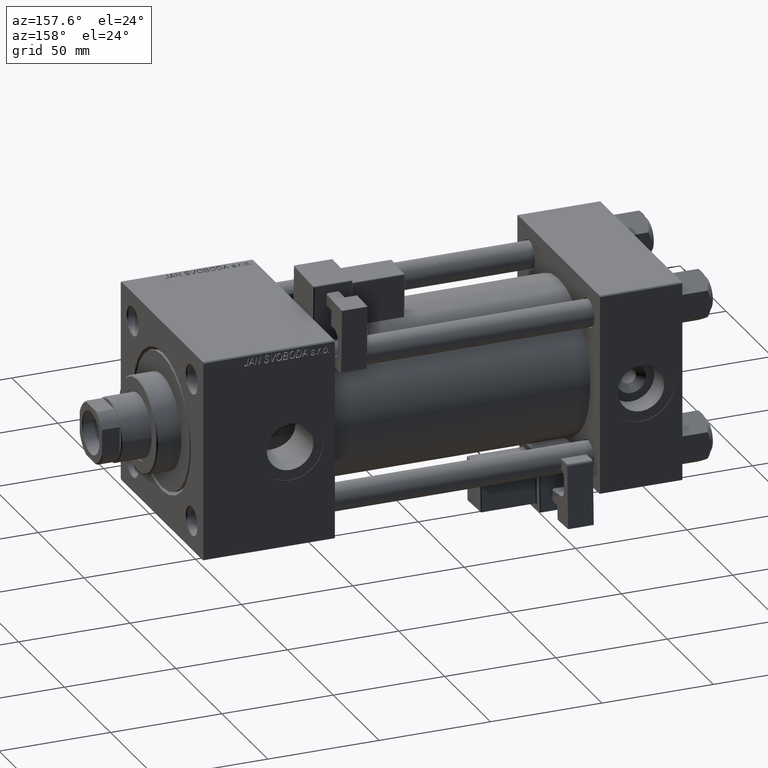
[diagram: clean part render]
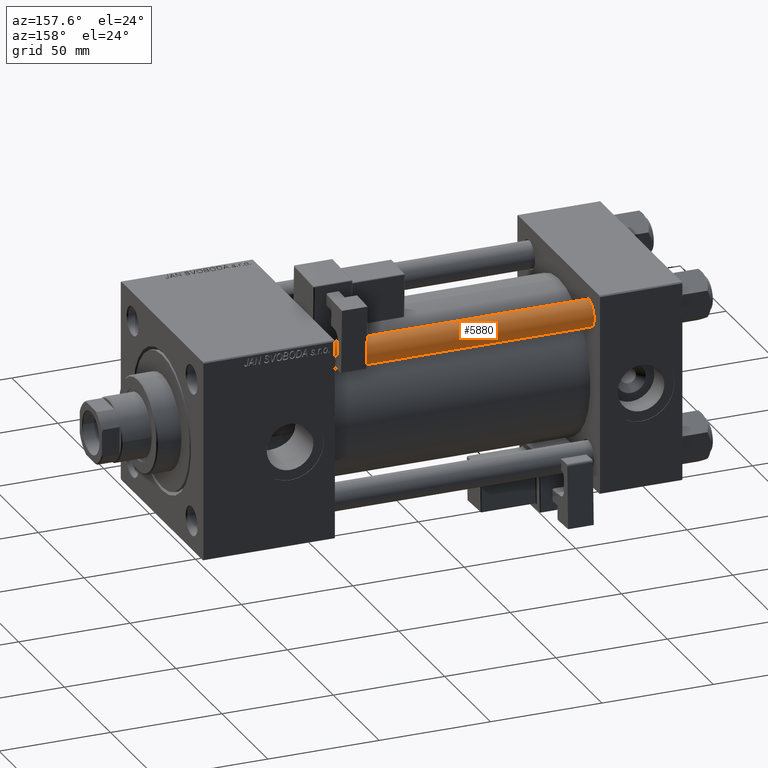
[diagram: same view with one face highlighted and labeled with its STEP entity id]
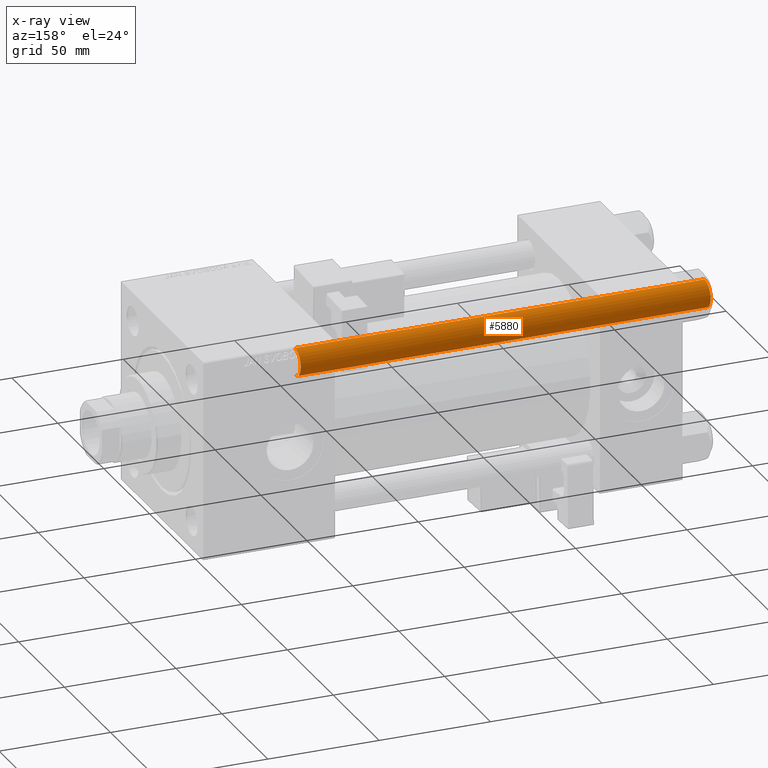
[diagram: x-ray of the same camera — body ghosted, the highlighted face saturated]
A machine part, auxiliary view. The second image highlights one B-rep face of the part: STEP entity #5880.
The next image is the same camera in x-ray: the body ghosted, the highlighted face saturated — about 0% of this face is hidden behind the body in this view.
In plain terms, the highlighted cylindrical surface (edge-blend (fillet) strip) has radius 6 mm, axis along (-1, 0, 0).
Its self-contained STEP definition (entity closure, byte-faithful):
#1052 = ORIENTED_EDGE ( 'NONE', *, *, #9875, .F. ) ;
#1553 = AXIS2_PLACEMENT_3D ( 'NONE', #29249, #5115, #13340 ) ;
#2311 = CARTESIAN_POINT ( 'NONE',  ( 6.000000000000000888, 7.347880794884120722E-16, 184.5000000000000000 ) ) ;
#5115 = DIRECTION ( 'NONE',  ( -0.000000000000000000, -0.000000000000000000, 1.000000000000000000 ) ) ;
#5134 = DIRECTION ( 'NONE',  ( 1.000000000000000000, 0.000000000000000000, 0.000000000000000000 ) ) ;
#5228 = CARTESIAN_POINT ( 'NONE',  ( 6.000000000000000888, 7.347880794884120722E-16, 0.5000000000000281997 ) ) ;
#5581 = FACE_OUTER_BOUND ( 'NONE', #11439, .T. ) ;
#5728 = ORIENTED_EDGE ( 'NONE', *, *, #31343, .T. ) ;
#5880 = ADVANCED_FACE ( 'NONE', ( #5581 ), #37909, .T. ) ;
#5950 = CARTESIAN_POINT ( 'NONE',  ( -6.000000000000000888, 0.000000000000000000, 0.5000000000000281997 ) ) ;
#6296 = DIRECTION ( 'NONE',  ( -0.000000000000000000, -0.000000000000000000, -1.000000000000000000 ) ) ;
#9082 = CIRCLE ( 'NONE', #48896, 6.000000000000000888 ) ;
#9875 = EDGE_CURVE ( 'NONE', #40016, #18573, #34541, .T. ) ;
#9911 = DIRECTION ( 'NONE',  ( -0.000000000000000000, -0.000000000000000000, -1.000000000000000000 ) ) ;
#11439 = EDGE_LOOP ( 'NONE', ( #13278, #5728, #27352, #1052 ) ) ;
#12264 = VECTOR ( 'NONE', #9911, 1000.000000000000000 ) ;
#13278 = ORIENTED_EDGE ( 'NONE', *, *, #15182, .T. ) ;
#13340 = DIRECTION ( 'NONE',  ( 1.000000000000000000, 0.000000000000000000, 0.000000000000000000 ) ) ;
#14268 = LINE ( 'NONE', #25927, #41997 ) ;
#15182 = EDGE_CURVE ( 'NONE', #40016, #48878, #9082, .T. ) ;
#18056 = CARTESIAN_POINT ( 'NONE',  ( 0.000000000000000000, 0.000000000000000000, 185.0000000000000000 ) ) ;
#18573 = VERTEX_POINT ( 'NONE', #5950 ) ;
#21574 = DIRECTION ( 'NONE',  ( 0.000000000000000000, 0.000000000000000000, -1.000000000000000000 ) ) ;
#24114 = AXIS2_PLACEMENT_3D ( 'NONE', #18056, #34472, #50647 ) ;
#25927 = CARTESIAN_POINT ( 'NONE',  ( 6.000000000000000888, 7.347880794884120722E-16, 185.0000000000000000 ) ) ;
#27352 = ORIENTED_EDGE ( 'NONE', *, *, #45609, .T. ) ;
#29249 = CARTESIAN_POINT ( 'NONE',  ( 0.000000000000000000, 0.000000000000000000, 0.5000000000000281997 ) ) ;
#31343 = EDGE_CURVE ( 'NONE', #48878, #47246, #14268, .T. ) ;
#34040 = CARTESIAN_POINT ( 'NONE',  ( -6.000000000000000888, 0.000000000000000000, 184.5000000000000000 ) ) ;
#34472 = DIRECTION ( 'NONE',  ( -0.000000000000000000, -0.000000000000000000, -1.000000000000000000 ) ) ;
#34541 = LINE ( 'NONE', #50195, #12264 ) ;
#36940 = CARTESIAN_POINT ( 'NONE',  ( 0.000000000000000000, 0.000000000000000000, 184.5000000000000000 ) ) ;
#37909 = CYLINDRICAL_SURFACE ( 'NONE', #24114, 6.000000000000000888 ) ;
#40016 = VERTEX_POINT ( 'NONE', #34040 ) ;
#41997 = VECTOR ( 'NONE', #6296, 1000.000000000000000 ) ;
#45609 = EDGE_CURVE ( 'NONE', #47246, #18573, #48986, .T. ) ;
#47246 = VERTEX_POINT ( 'NONE', #5228 ) ;
#48878 = VERTEX_POINT ( 'NONE', #2311 ) ;
#48896 = AXIS2_PLACEMENT_3D ( 'NONE', #36940, #21574, #5134 ) ;
#48986 = CIRCLE ( 'NONE', #1553, 6.000000000000000888 ) ;
#50195 = CARTESIAN_POINT ( 'NONE',  ( -6.000000000000000888, 0.000000000000000000, 185.0000000000000000 ) ) ;
#50647 = DIRECTION ( 'NONE',  ( -1.000000000000000000, 0.000000000000000000, 0.000000000000000000 ) ) ;